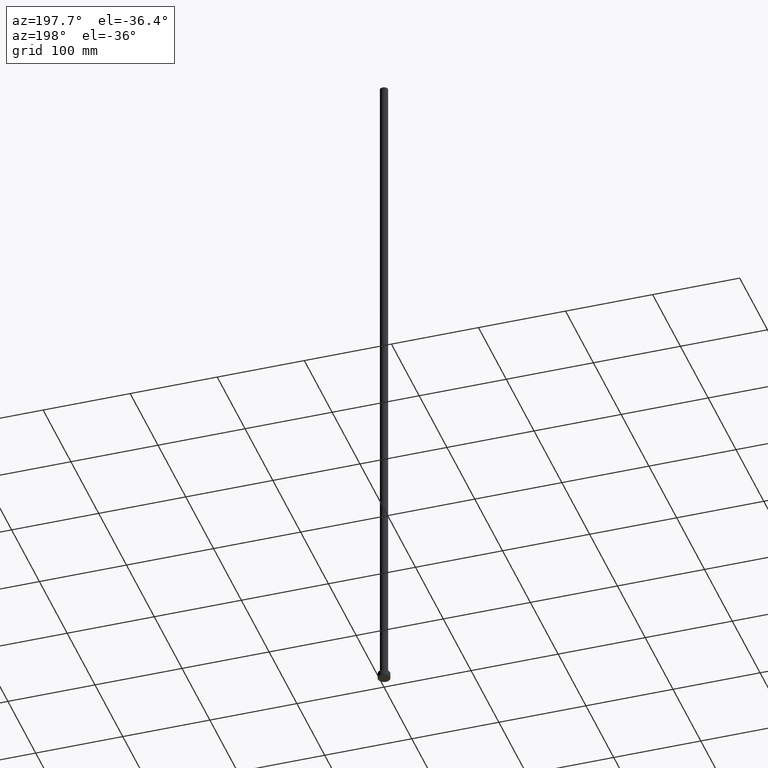
[diagram: clean part render]
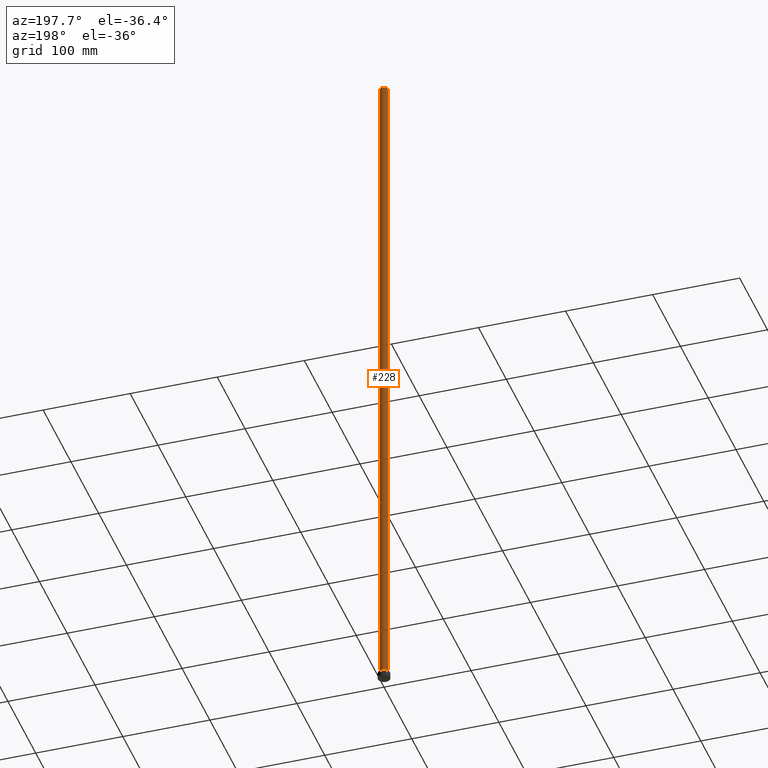
[diagram: same view with one face highlighted and labeled with its STEP entity id]
A machine part, auxiliary view. The second image highlights one B-rep face of the part: STEP entity #228.
In plain terms, the highlighted cylindrical surface (edge-blend (fillet) strip) has radius 4.5 mm, axis along (-0, -0, -1).
Its self-contained STEP definition (entity closure, byte-faithful):
#5 = EDGE_CURVE ( 'NONE', #224, #68, #129, .T. ) ;
#13 = CARTESIAN_POINT ( 'NONE',  ( 4.500000000000000888, 5.510910596163089556E-16, 799.9999999999998863 ) ) ;
#18 = DIRECTION ( 'NONE',  ( 0.000000000000000000, 0.000000000000000000, 1.000000000000000000 ) ) ;
#26 = CYLINDRICAL_SURFACE ( 'NONE', #142, 4.500000000000000888 ) ;
#28 = VERTEX_POINT ( 'NONE', #47 ) ;
#30 = VECTOR ( 'NONE', #104, 1000.000000000000000 ) ;
#39 = LINE ( 'NONE', #201, #30 ) ;
#47 = CARTESIAN_POINT ( 'NONE',  ( -4.500000000000000888, 0.000000000000000000, 6.500000000000000000 ) ) ;
#57 = AXIS2_PLACEMENT_3D ( 'NONE', #212, #18, #238 ) ;
#60 = CARTESIAN_POINT ( 'NONE',  ( 0.000000000000000000, 0.000000000000000000, 799.9999999999998863 ) ) ;
#68 = VERTEX_POINT ( 'NONE', #131 ) ;
#77 = EDGE_CURVE ( 'NONE', #68, #28, #240, .T. ) ;
#81 = CARTESIAN_POINT ( 'NONE',  ( 0.000000000000000000, 0.000000000000000000, 799.9999999999998863 ) ) ;
#86 = ORIENTED_EDGE ( 'NONE', *, *, #179, .F. ) ;
#103 = VECTOR ( 'NONE', #112, 1000.000000000000000 ) ;
#104 = DIRECTION ( 'NONE',  ( -0.000000000000000000, -0.000000000000000000, -1.000000000000000000 ) ) ;
#106 = ORIENTED_EDGE ( 'NONE', *, *, #234, .F. ) ;
#109 = AXIS2_PLACEMENT_3D ( 'NONE', #60, #241, #221 ) ;
#112 = DIRECTION ( 'NONE',  ( -0.000000000000000000, -0.000000000000000000, -1.000000000000000000 ) ) ;
#129 = LINE ( 'NONE', #13, #103 ) ;
#131 = CARTESIAN_POINT ( 'NONE',  ( 4.500000000000000888, 5.510910596163089556E-16, 6.500000000000000000 ) ) ;
#142 = AXIS2_PLACEMENT_3D ( 'NONE', #81, #162, #164 ) ;
#145 = ORIENTED_EDGE ( 'NONE', *, *, #77, .T. ) ;
#149 = VERTEX_POINT ( 'NONE', #178 ) ;
#162 = DIRECTION ( 'NONE',  ( -0.000000000000000000, -0.000000000000000000, -1.000000000000000000 ) ) ;
#164 = DIRECTION ( 'NONE',  ( -1.000000000000000000, 0.000000000000000000, 0.000000000000000000 ) ) ;
#167 = EDGE_LOOP ( 'NONE', ( #86, #187, #145, #106 ) ) ;
#178 = CARTESIAN_POINT ( 'NONE',  ( -4.500000000000000888, 0.000000000000000000, 799.9999999999998863 ) ) ;
#179 = EDGE_CURVE ( 'NONE', #224, #149, #231, .T. ) ;
#187 = ORIENTED_EDGE ( 'NONE', *, *, #5, .T. ) ;
#201 = CARTESIAN_POINT ( 'NONE',  ( -4.500000000000000888, 0.000000000000000000, 799.9999999999998863 ) ) ;
#204 = FACE_OUTER_BOUND ( 'NONE', #167, .T. ) ;
#212 = CARTESIAN_POINT ( 'NONE',  ( 0.000000000000000000, 0.000000000000000000, 6.500000000000000000 ) ) ;
#221 = DIRECTION ( 'NONE',  ( 1.000000000000000000, 0.000000000000000000, 0.000000000000000000 ) ) ;
#222 = CARTESIAN_POINT ( 'NONE',  ( 4.500000000000000888, 5.510910596163089556E-16, 799.9999999999998863 ) ) ;
#224 = VERTEX_POINT ( 'NONE', #222 ) ;
#228 = ADVANCED_FACE ( 'NONE', ( #204 ), #26, .T. ) ;
#231 = CIRCLE ( 'NONE', #109, 4.500000000000000888 ) ;
#234 = EDGE_CURVE ( 'NONE', #149, #28, #39, .T. ) ;
#238 = DIRECTION ( 'NONE',  ( 1.000000000000000000, 0.000000000000000000, 0.000000000000000000 ) ) ;
#240 = CIRCLE ( 'NONE', #57, 4.500000000000000888 ) ;
#241 = DIRECTION ( 'NONE',  ( 0.000000000000000000, 0.000000000000000000, 1.000000000000000000 ) ) ;